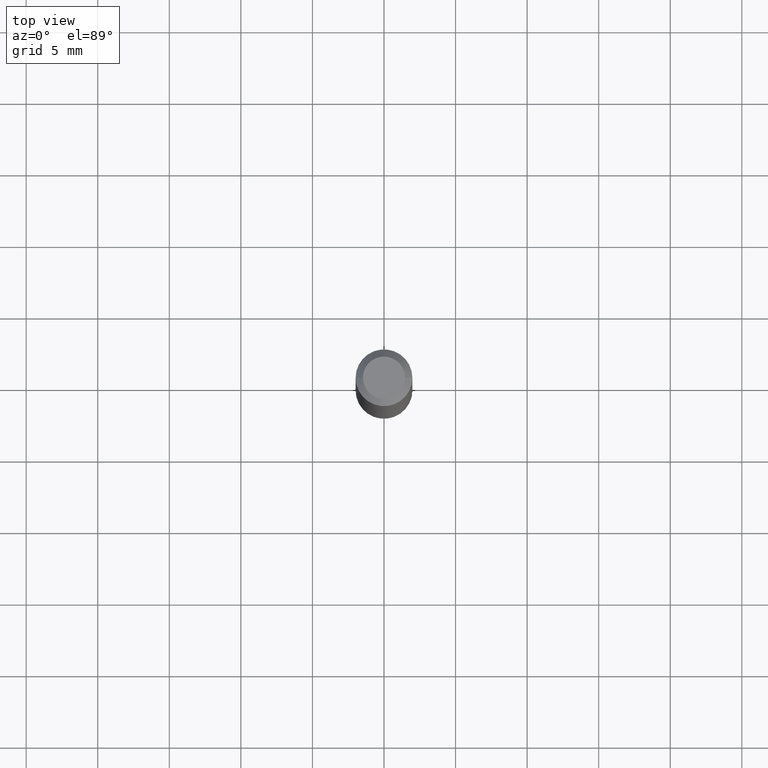
[diagram: clean part render]
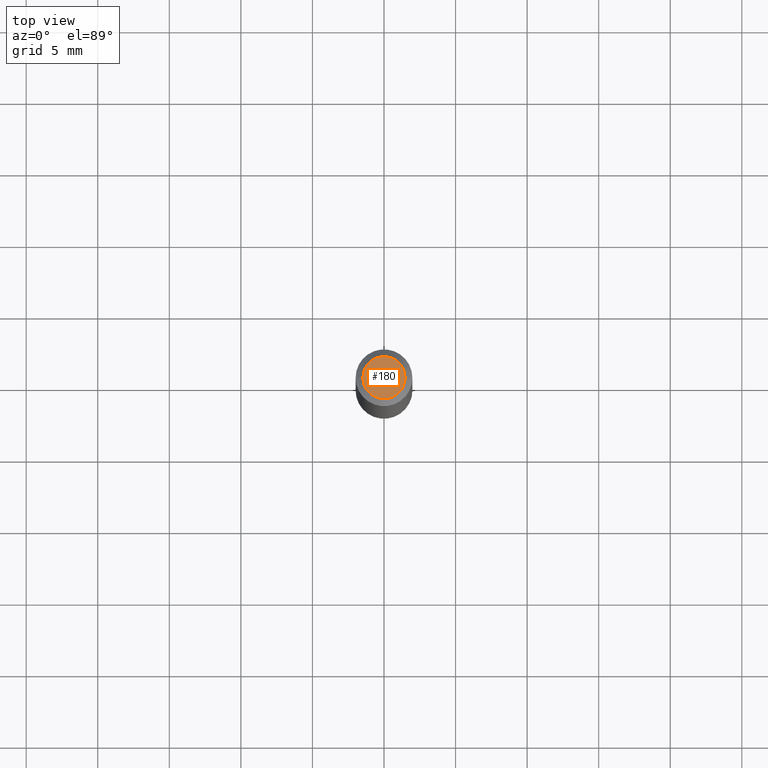
[diagram: same view with one face highlighted and labeled with its STEP entity id]
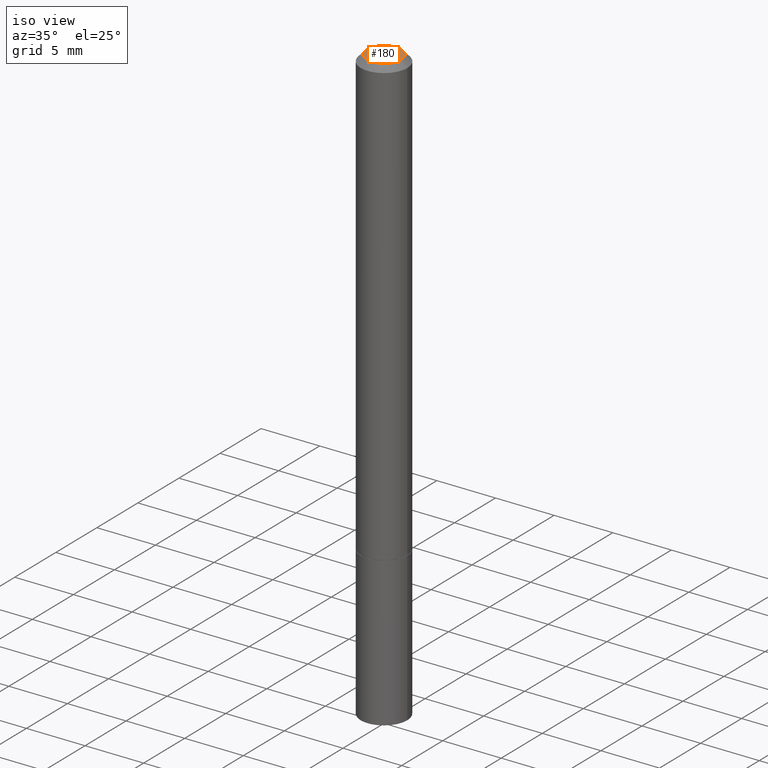
[diagram: same view with one face highlighted and labeled with its STEP entity id]
A machine part, top view. The second image highlights one B-rep face of the part: STEP entity #180.
A second angle (iso view) of the same face is appended — the face is thin or edge-on in the first view.
In plain terms, the highlighted planar face has unit normal (0, -0, -1).
Its self-contained STEP definition (entity closure, byte-faithful):
#19 = VERTEX_POINT ( 'NONE', #269 ) ;
#37 = DIRECTION ( 'NONE',  ( 1.000000000000000000, -6.982962677686266711E-15, 4.876176775795935793E-29 ) ) ;
#71 = DIRECTION ( 'NONE',  ( -1.000000000000000000, 6.982962677686265922E-15, -4.876176775795935793E-29 ) ) ;
#74 = CARTESIAN_POINT ( 'NONE',  ( 0.05809999999999985315, -5.021147270366716439E-16, 3.173941575800420060E-30 ) ) ;
#112 = ORIENTED_EDGE ( 'NONE', *, *, #210, .T. ) ;
#133 = CIRCLE ( 'NONE', #361, 0.05809999999999985315 ) ;
#137 = DIRECTION ( 'NONE',  ( 2.438088387897960049E-29, -3.491481338843145188E-15, -1.000000000000000000 ) ) ;
#167 = AXIS2_PLACEMENT_3D ( 'NONE', #354, #356, #272 ) ;
#180 = ADVANCED_FACE ( 'NONE', ( #259 ), #262, .F. ) ;
#199 = DIRECTION ( 'NONE',  ( -2.445468806185136597E-29, 3.491481338843145583E-15, 1.000000000000000000 ) ) ;
#210 = EDGE_CURVE ( 'NONE', #230, #19, #133, .T. ) ;
#227 = ORIENTED_EDGE ( 'NONE', *, *, #350, .T. ) ;
#230 = VERTEX_POINT ( 'NONE', #74 ) ;
#259 = FACE_OUTER_BOUND ( 'NONE', #326, .T. ) ;
#262 = PLANE ( 'NONE',  #315 ) ;
#269 = CARTESIAN_POINT ( 'NONE',  ( -0.05809999999999985315, 4.406249449620020947E-16, -2.959251149157179307E-30 ) ) ;
#272 = DIRECTION ( 'NONE',  ( 1.000000000000000000, -6.982962677686266711E-15, 4.876176775795935793E-29 ) ) ;
#315 = AXIS2_PLACEMENT_3D ( 'NONE', #321, #137, #71 ) ;
#321 = CARTESIAN_POINT ( 'NONE',  ( 4.057101315735710372E-16, 0.05809999999999985315, -2.028550657867862335E-16 ) ) ;
#324 = CARTESIAN_POINT ( 'NONE',  ( 0.000000000000000000, 0.000000000000000000, 0.000000000000000000 ) ) ;
#326 = EDGE_LOOP ( 'NONE', ( #227, #112 ) ) ;
#350 = EDGE_CURVE ( 'NONE', #19, #230, #389, .T. ) ;
#354 = CARTESIAN_POINT ( 'NONE',  ( 0.000000000000000000, 0.000000000000000000, 0.000000000000000000 ) ) ;
#356 = DIRECTION ( 'NONE',  ( -2.445468806185136597E-29, 3.491481338843145583E-15, 1.000000000000000000 ) ) ;
#361 = AXIS2_PLACEMENT_3D ( 'NONE', #324, #199, #37 ) ;
#389 = CIRCLE ( 'NONE', #167, 0.05809999999999985315 ) ;